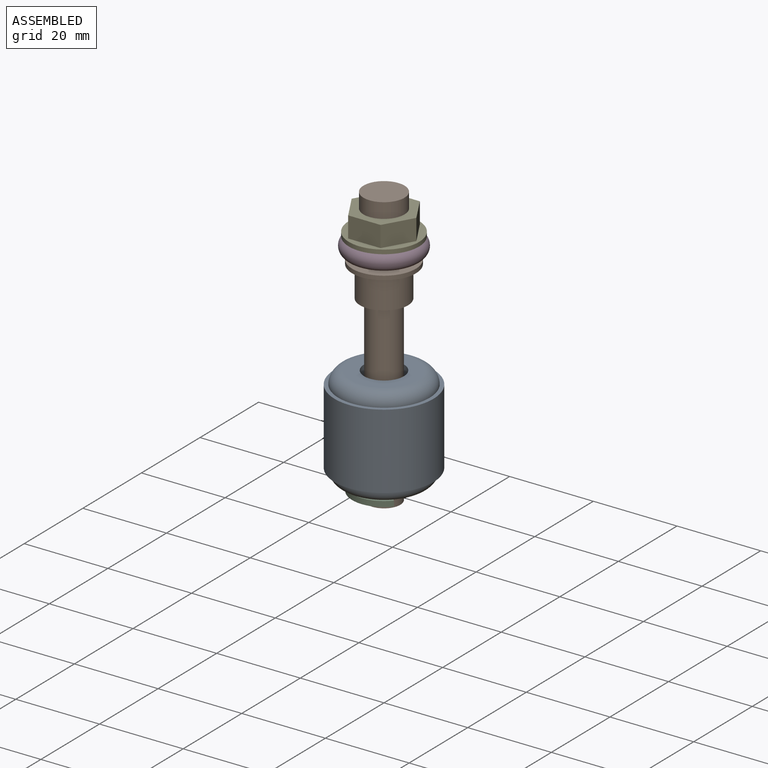
[diagram: assembled view]
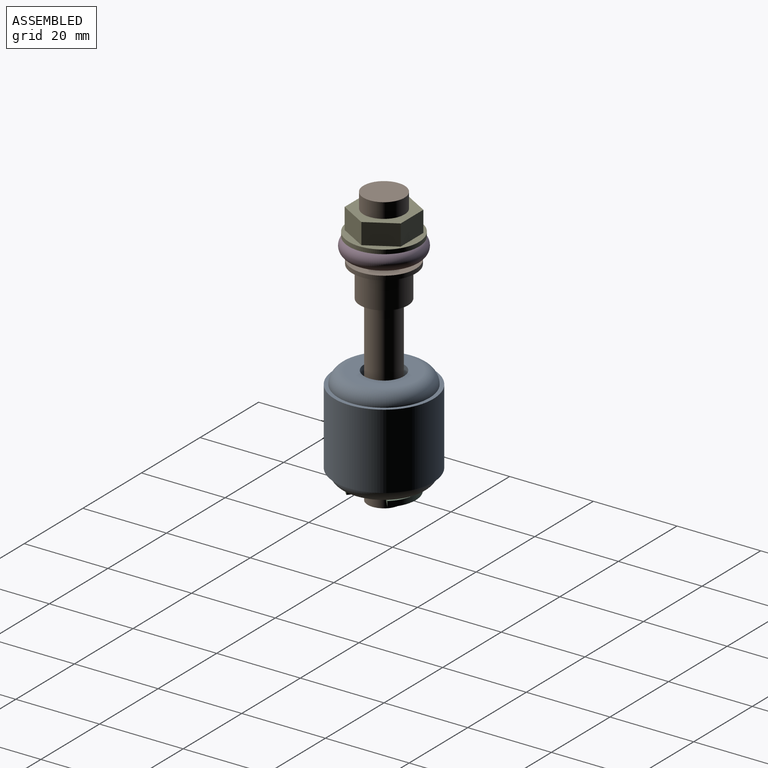
[diagram: assembled view, second angle]
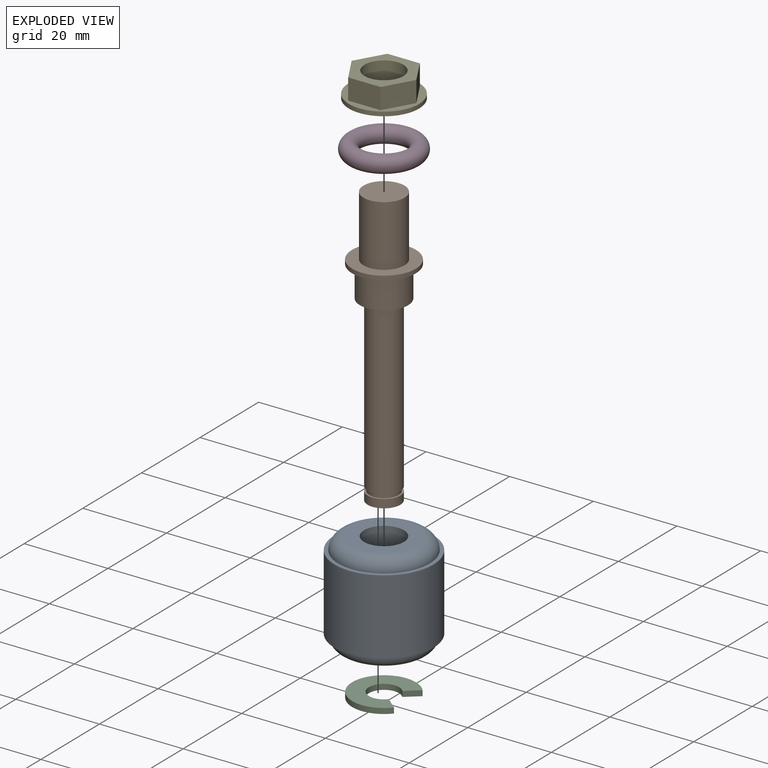
[diagram: exploded view]
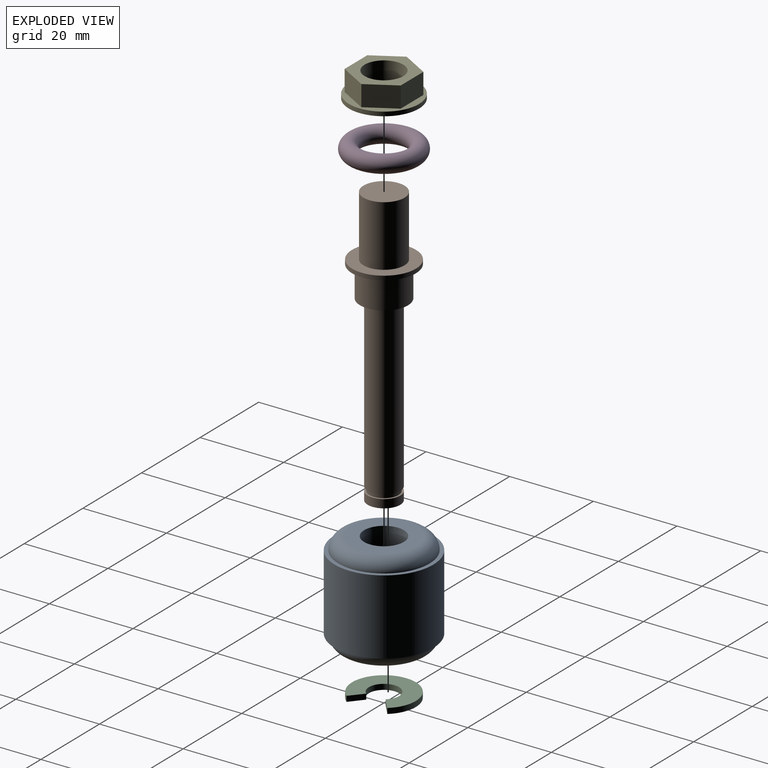
[diagram: exploded view, second angle]
FCSTD DOCUMENT  (FreeCAD 0.22R37100 (Git))
Label: water_sensor
License: All rights reserved
LicenseURL: http://en.wikipedia.org/wiki/All_rights_reserved
objects: PartDesign::CoordinateSystem×9, Sketcher::SketchObject×6, PartDesign::Body×5, App::Link×5, App::Part×5, App::FeaturePython×5, Part::FeaturePython×4, PartDesign::Pad×3, PartDesign::Revolution×2, PartDesign::Mirrored×2, App::AnnotationLabel×2, PartDesign::AdditiveTorus×1, PartDesign::Pocket×1, Assembly::JointGroup×1, Assembly::AssemblyObject×1, App::DocumentObjectGroup×1
note: 40 computed .brp shape members not serialized (recipe doc carries the construction recipe); baked Part::Feature solids carry a one-line shape summary decoded from their .brp

FEATURE [Sketcher::SketchObject] Sketch
  AttachmentSupport = -> [XZ_Plane]
  FullyConstrained = true
  MapMode = 5
  Placement = pos=(0,0,0) rot=(1,0,0;1.5708rad)
  sketch-geometry (6):
    g0: LineSegment StartX=4.75 StartY=0 StartZ=0 EndX=4.75 EndY=12 EndZ=0
    g1: LineSegment StartX=4.75 StartY=12 StartZ=0 EndX=7.9 EndY=12 EndZ=0
    g2: LineSegment StartX=10.9 StartY=9 StartZ=0 EndX=11.8 EndY=9 EndZ=0
    g3: LineSegment StartX=11.8 StartY=9 StartZ=0 EndX=11.8 EndY=0 EndZ=0
    g4: LineSegment StartX=11.8 StartY=0 StartZ=0 EndX=4.75 EndY=0 EndZ=0
    g5: ArcOfCircle CenterX=7.9 CenterY=9 CenterZ=0 NormalX=0 NormalY=0 NormalZ=1 AngleXU=0 Radius=3 StartAngle=1e-16 EndAngle=1.5708
  constraints (17):
    c: PointOnObject(g0,g-1)
    c: Vertical(g0)
    c: Coincident(g0,g1)
    c: Horizontal(g1)
    c: Horizontal(g2)
    c: Coincident(g2,g3)
    c: PointOnObject(g3,g-1)
    c: Vertical(g3)
    c: Coincident(g3,g4)
    c: Coincident(g4,g0)
    c: Tangent(g1,g5) = 1.5708
    c: Perpendicular(g5,g2) = 4.71239
    c: DistanceX(g0) = 4.75
    c: DistanceY(g0) = 12
    c: DistanceY(g3,g3) = 9
    c: DistanceX(g2) = 10.9
    c: DistanceX(g3) = 11.8
FEATURE [PartDesign::Revolution] Revolution
  Angle = 360
  Angle2 = 60
  Axis = (0,2e-16,1)
  Base = (0,0,0)
  Placement = pos=(0,0,0) rot=(1,0,0;1.5708rad)
  Profile = -> Sketch
  ReferenceAxis = -> Sketch [V_Axis]
  Reversed = true
  Suppressed = false
  Type = 0
FEATURE [PartDesign::Mirrored] Mirrored
  BaseFeature = -> Revolution
  MirrorPlane = -> Sketch [H_Axis]
  Originals = -> [Revolution]
  Placement = pos=(0,0,0) rot=(1,0,0;1.5708rad)
  Refine = true
  Suppressed = false
FEATURE [Sketcher::SketchObject] Sketch001
  AttachmentSupport = -> [XZ_Plane001]
  FullyConstrained = true
  MapMode = 5
  Placement = pos=(0,0,0) rot=(1,0,0;1.5708rad)
  sketch-geometry (14):
    g0: LineSegment StartX=0 StartY=0 StartZ=0 EndX=3.9 EndY=0 EndZ=0
    g1: LineSegment StartX=3.9 StartY=0 StartZ=0 EndX=3.9 EndY=2 EndZ=0
    g2: LineSegment StartX=3.9 StartY=2 StartZ=0 EndX=3.475 EndY=2 EndZ=0
    g3: LineSegment StartX=3.475 StartY=2 StartZ=0 EndX=3.475 EndY=3 EndZ=0
    g4: LineSegment StartX=3.475 StartY=3 StartZ=0 EndX=3.9 EndY=3 EndZ=0
    g5: LineSegment StartX=3.9 StartY=3 StartZ=0 EndX=3.9 EndY=43.6 EndZ=0
    g6: LineSegment StartX=3.9 StartY=43.6 StartZ=0 EndX=5.75 EndY=43.6 EndZ=0
    g7: LineSegment StartX=5.75 StartY=43.6 StartZ=0 EndX=5.75 EndY=51 EndZ=0
    g8: LineSegment StartX=5.75 StartY=51 StartZ=0 EndX=7.625 EndY=51 EndZ=0
    g9: LineSegment StartX=7.625 StartY=51 StartZ=0 EndX=7.625 EndY=52 EndZ=0
    g10: LineSegment StartX=7.625 StartY=52 StartZ=0 EndX=4.9 EndY=52 EndZ=0
    g11: LineSegment StartX=4.9 StartY=52 StartZ=0 EndX=4.9 EndY=66.6 EndZ=0
    g12: LineSegment StartX=4.9 StartY=66.6 StartZ=0 EndX=0 EndY=66.6 EndZ=0
    g13: LineSegment StartX=0 StartY=66.6 StartZ=0 EndX=0 EndY=0 EndZ=0
  constraints (41):
    c: Coincident(g-1,g0)
    c: PointOnObject(g0,g-1)
    c: Coincident(g0,g1)
    c: Vertical(g1)
    c: Coincident(g1,g2)
    c: Horizontal(g2)
    c: Coincident(g2,g3)
    c: Vertical(g3)
    c: Coincident(g3,g4)
    c: Horizontal(g4)
    c: Coincident(g4,g5)
    c: Vertical(g5)
    c: Coincident(g5,g6)
    c: Horizontal(g6)
    c: Coincident(g6,g7)
    c: Vertical(g7)
    c: Coincident(g7,g8)
    c: Horizontal(g8)
    c: Coincident(g8,g9)
    c: Vertical(g9)
    c: Coincident(g9,g10)
    c: Coincident(g10,g11)
    c: Vertical(g11)
    c: Coincident(g11,g12)
    c: PointOnObject(g12,g-2)
    c: Horizontal(g12)
    c: Coincident(g13,g12)
    c: Coincident(g13,g0)
    c: DistanceY(g1) = 2
    c: Vertical(g1,g4)
    c: DistanceX(g0) = 3.9
    c: DistanceX(g2) = 3.475
    c: DistanceY(g3,g3) = 1
    c: DistanceY(g5) = 43.6
    c: DistanceX(g6) = 5.75
    c: Horizontal(g10)
    c: DistanceY(g9,g9) = 1
    c: DistanceY(g9) = 52
    c: DistanceX(g8) = 7.625
    c: DistanceX(g10) = 4.9
    c: DistanceY(g12) = 66.6
FEATURE [PartDesign::Revolution] Revolution001
  Angle = 360
  Angle2 = 60
  Axis = (0,2e-16,1)
  Base = (0,0,0)
  Placement = pos=(0,0,0) rot=(1,0,0;1.5708rad)
  Profile = -> Sketch001
  ReferenceAxis = -> Sketch001 [V_Axis]
  Reversed = true
  Suppressed = false
  Type = 0
FEATURE [Sketcher::SketchObject] Sketch002
  AttachmentSupport = -> [XY_Plane002]
  FullyConstrained = true
  MapMode = 5
  sketch-geometry (4):
    g0: ArcOfCircle CenterX=0 CenterY=0 CenterZ=0 NormalX=0 NormalY=0 NormalZ=1 AngleXU=0 Radius=3.6 StartAngle=0.698132 EndAngle=3.14159
    g1: ArcOfCircle CenterX=0 CenterY=0 CenterZ=0 NormalX=0 NormalY=0 NormalZ=1 AngleXU=0 Radius=7.6 StartAngle=0.698132 EndAngle=3.14159
    g2: LineSegment StartX=-7.6 StartY=9e-16 StartZ=0 EndX=-3.6 EndY=4e-16 EndZ=0
    g3: LineSegment StartX=2.75776 StartY=2.31404 StartZ=0 EndX=5.82194 EndY=4.88519 EndZ=0
  constraints (12):
    c: Coincident(g0,g-1)
    c: PointOnObject(g0,g-1)
    c: Coincident(g1,g0)
    c: PointOnObject(g1,g-1)
    c: Coincident(g2,g1)
    c: Coincident(g2,g0)
    c: Coincident(g3,g0)
    c: Coincident(g3,g1)
    c: PointOnObject(g0,g3)
    c: Diameter(g0) = 7.2
    c: Diameter(g1) = 15.2
    c: Angle(g3) = 0.698132
FEATURE [PartDesign::Pad] Pad
  Direction = (0,0,1)
  Length = 1.3
  Length2 = 10
  Profile = -> Sketch002
  ReferenceAxis = -> Sketch002 [N_Axis]
  Suppressed = false
  Type = 0
FEATURE [PartDesign::Mirrored] Mirrored001
  BaseFeature = -> Pad
  MirrorPlane = -> Sketch002 [H_Axis]
  Originals = -> [Pad]
  Suppressed = false
FEATURE [PartDesign::AdditiveTorus] Torus
  Angle1 = -180
  Angle2 = 180
  Angle3 = 360
  AttacherType = Attacher::AttachEngine3D
  Radius1 = 7
  Radius2 = 2
  Suppressed = false
FEATURE [Sketcher::SketchObject] Sketch003
  AttachmentSupport = -> [XY_Plane004]
  FullyConstrained = true
  MapMode = 5
  sketch-geometry (7):
    g0: LineSegment StartX=7.73649 StartY=0 StartZ=0 EndX=3.86825 EndY=6.7 EndZ=0
    g1: LineSegment StartX=3.86825 StartY=6.7 StartZ=0 EndX=-3.86825 EndY=6.7 EndZ=0
    g2: LineSegment StartX=-3.86825 StartY=6.7 StartZ=0 EndX=-7.73649 EndY=-1.13589e-11 EndZ=0
    g3: LineSegment StartX=-7.73649 StartY=-1.13592e-11 StartZ=0 EndX=-3.86825 EndY=-6.7 EndZ=0
    g4: LineSegment StartX=-3.86825 StartY=-6.7 StartZ=0 EndX=3.86825 EndY=-6.7 EndZ=0
    g5: LineSegment StartX=3.86825 StartY=-6.7 StartZ=0 EndX=7.73649 EndY=0 EndZ=0
    g6: Circle CenterX=0 CenterY=0 CenterZ=0 NormalX=0 NormalY=0 NormalZ=1 AngleXU=0 Radius=7.73649
  constraints (16):
    c: Coincident(g0,g1)
    c: Coincident(g1,g2)
    c: Coincident(g2,g3)
    c: Coincident(g3,g4)
    c: Coincident(g4,g5)
    c: Coincident(g5,g0)
    c: Equal(g0, g1-g5) x5
    c: PointOnObject(g0,g6)
    c: PointOnObject(g1,g6)
    c: PointOnObject(g2,g6)
    c: PointOnObject(g3,g6)
    c: PointOnObject(g4,g6)
    c: PointOnObject(g5,g6)
    c: Coincident(g6,g-1)
    c: PointOnObject(g5,g-1)
    c: DistanceY(g4,g0) = 13.4
FEATURE [Sketcher::SketchObject] Sketch004
  AttachmentSupport = -> [XY_Plane004]
  FullyConstrained = true
  MapMode = 5
  sketch-geometry (1):
    g0: Circle CenterX=0 CenterY=0 CenterZ=0 NormalX=0 NormalY=0 NormalZ=1 AngleXU=0 Radius=8.4
  constraints (2):
    c: Coincident(g0,g-1)
    c: Diameter(g0) = 16.8
FEATURE [PartDesign::Pad] Pad001
  Direction = (0,0,1)
  Length = 6
  Length2 = 10
  Profile = -> Sketch003
  ReferenceAxis = -> Sketch003 [N_Axis]
  Suppressed = false
  Type = 0
FEATURE [PartDesign::Pad] Pad002
  BaseFeature = -> Pad001
  Direction = (0,0,1)
  Length = 1
  Length2 = 10
  Profile = -> Sketch004
  ReferenceAxis = -> Sketch004 [N_Axis]
  Suppressed = false
  Type = 0
FEATURE [Sketcher::SketchObject] Sketch005
  AttachmentSupport = -> [XY_Plane004]
  FullyConstrained = true
  MapMode = 5
  sketch-geometry (1):
    g0: Circle CenterX=0 CenterY=0 CenterZ=0 NormalX=0 NormalY=0 NormalZ=1 AngleXU=0 Radius=4.625
  constraints (2):
    c: Coincident(g0,g-1)
    c: Diameter(g0) = 9.25
FEATURE [PartDesign::Pocket] Pocket
  BaseFeature = -> Pad002
  Direction = (0,0,-1)
  Length = 5
  Length2 = 5
  Midplane = true
  Profile = -> Sketch005
  ReferenceAxis = -> Sketch005 [N_Axis]
  Suppressed = false
  Type = 1
FEATURE [PartDesign::CoordinateSystem] Local_CS
  AttacherType = Attacher::AttachEngine3D
  AttachmentSupport = -> [XY_Plane]
  MapMode = 5
FEATURE [PartDesign::Body] Body
  Group = -> [Sketch,Revolution,Mirrored,Local_CS]
  Origin = -> Origin
  Tip = -> Mirrored
FEATURE [PartDesign::CoordinateSystem] Local_CS001
  AttacherType = Attacher::AttachEngine3D
  AttachmentOffset = pos=(0,0,2) rot=(0,0,1;0rad)
  AttachmentSupport = -> [XY_Plane001]
  MapMode = 5
  Placement = pos=(0,0,2) rot=(0,0,1;0rad)
FEATURE [PartDesign::CoordinateSystem] Local_CS002
  AttacherType = Attacher::AttachEngine3D
  AttachmentOffset = pos=(0,0,16) rot=(0,0,1;0rad)
  AttachmentSupport = -> [XY_Plane001]
  MapMode = 5
  Placement = pos=(0,0,16) rot=(0,0,1;0rad)
FEATURE [PartDesign::CoordinateSystem] Local_CS003
  AttacherType = Attacher::AttachEngine3D
  AttachmentOffset = pos=(0,0,55) rot=(0,0,1;0rad)
  AttachmentSupport = -> [XY_Plane001]
  MapMode = 5
  Placement = pos=(0,0,55) rot=(0,0,1;0rad)
FEATURE [PartDesign::CoordinateSystem] Local_CS004
  AttacherType = Attacher::AttachEngine3D
  AttachmentOffset = pos=(0,0,57) rot=(0,0,1;0rad)
  AttachmentSupport = -> [XY_Plane001]
  MapMode = 5
  Placement = pos=(0,0,57) rot=(0,0,1;0rad)
FEATURE [PartDesign::Body] Body001
  Group = -> [Sketch001,Revolution001,Local_CS001,Local_CS002,Local_CS003,Local_CS004]
  Origin = -> Origin001
  Tip = -> Revolution001
FEATURE [PartDesign::CoordinateSystem] Local_CS005
  AttacherType = Attacher::AttachEngine3D
  AttachmentSupport = -> [XY_Plane002]
  MapMode = 5
FEATURE [PartDesign::Body] Body002
  Group = -> [Sketch002,Pad,Mirrored001,Local_CS005]
  Origin = -> Origin002
  Tip = -> Mirrored001
FEATURE [PartDesign::CoordinateSystem] Local_CS006
  AttacherType = Attacher::AttachEngine3D
  AttachmentSupport = -> [XY_Plane003]
  MapMode = 5
FEATURE [PartDesign::Body] Body003
  Group = -> [Torus,Local_CS006]
  Origin = -> Origin003
  Tip = -> Torus
FEATURE [PartDesign::CoordinateSystem] Local_CS007
  AttacherType = Attacher::AttachEngine3D
  AttachmentSupport = -> [XY_Plane004]
  MapMode = 5
FEATURE [PartDesign::Body] Body004
  Group = -> [Sketch003,Sketch004,Pad001,Pad002,Sketch005,Pocket,Local_CS007]
  Origin = -> Origin004
  Tip = -> Pocket
FEATURE [App::Link] Body005
  LinkedObject = -> Body001
FEATURE [App::Part] Part_Body001  label="Part_Body001 🔒 "
  Group = -> [Body005]
  Origin = -> Origin006
  Placement = pos=(0,0,-52) rot=(0,0,1;0rad)
FEATURE [App::Link] Body006
  LinkedObject = -> Body
FEATURE [App::Part] Part_Body
  Group = -> [Body006]
  Origin = -> Origin007
  Placement = pos=(0,0,-36) rot=(0,0,1;0rad)
FEATURE [App::Link] Body007
  LinkedObject = -> Body002
FEATURE [App::Part] Part_Body002
  Group = -> [Body007]
  Origin = -> Origin008
  Placement = pos=(0,0,-50) rot=(0,0,1;0rad)
FEATURE [App::Link] Body008
  LinkedObject = -> Body003
FEATURE [App::Part] Part_Body003
  Group = -> [Body008]
  Origin = -> Origin009
  Placement = pos=(0,0,3) rot=(0,0,1;0rad)
FEATURE [App::Link] Body009
  LinkedObject = -> Body004
FEATURE [App::Part] Part_Body004
  Group = -> [Body009]
  Origin = -> Origin010
  Placement = pos=(0,0,5) rot=(0,0,1;0rad)
FEATURE [App::FeaturePython] Fixed  # Assembly joint (typed FeaturePython)
  Activated = true
  Detach1 = false
  Detach2 = false
  Distance = 0
  JointType = 0 (Fixed)
  Object1 = Local_CS001
  Object2 = Local_CS005
  Offset = (0,0,0)
  Part1 = -> Part_Body001
  Part2 = -> Part_Body002
  Rotation = 0
FEATURE [App::FeaturePython] Fixed001  # Assembly joint (typed FeaturePython)
  Activated = true
  Detach1 = false
  Detach2 = false
  Distance = 0
  JointType = 0 (Fixed)
  Object1 = Local_CS003
  Object2 = Local_CS006
  Offset = (0,0,0)
  Part1 = -> Part_Body001
  Part2 = -> Part_Body003
  Rotation = 0
FEATURE [App::FeaturePython] Fixed002  # Assembly joint (typed FeaturePython)
  Activated = true
  Detach1 = false
  Detach2 = false
  Distance = 0
  JointType = 0 (Fixed)
  Object1 = Local_CS004
  Object2 = Local_CS007
  Offset = (0,0,0)
  Part1 = -> Part_Body001
  Part2 = -> Part_Body004
  Rotation = 0
FEATURE [App::FeaturePython] GroundedJoint  # Assembly grounded joint (typed FeaturePython)
  ObjectToGround = -> Part_Body001
  Placement = pos=(0,0,-52) rot=(0,0,1;0rad)
FEATURE [App::FeaturePython] Fixed003  # Assembly joint (typed FeaturePython)
  Activated = true
  Detach1 = false
  Detach2 = false
  Distance = 0
  JointType = 0 (Fixed)
  Object1 = Local_CS002
  Object2 = Local_CS
  Offset = (0,0,0)
  Part1 = -> Part_Body001
  Part2 = -> Part_Body
  Rotation = 0
FEATURE [Assembly::JointGroup] Joints
  Group = -> [Fixed,Fixed001,Fixed002,GroundedJoint,Fixed003]
FEATURE [PartDesign::CoordinateSystem] Local_CS008
  AttacherType = Attacher::AttachEngine3D
  AttachmentSupport = -> [XY_Plane005]
  MapMode = 5
FEATURE [Assembly::AssemblyObject] Assembly
  Group = -> [Joints,Part_Body001,Part_Body,Part_Body002,Part_Body003,Part_Body004,Fixed,Fixed001,Fixed002,GroundedJoint,Fixed003,Local_CS008]
  Origin = -> Origin005
  Type = Assembly
FEATURE [Part::FeaturePython] aCircle  # WARN: FeaturePython — macro-defined, semantics opaque (R4)
FEATURE [Part::FeaturePython] Radius  # WARN: FeaturePython — macro-defined, semantics opaque (R4)
FEATURE [App::AnnotationLabel] MeasureLbl
  BasePosition = (4.9,1.48e-14,14.6)
  LabelText = R = 4,9000 mm
  TextPosition = (0,0,0)
FEATURE [Part::FeaturePython] aCircle001  # WARN: FeaturePython — macro-defined, semantics opaque (R4)
FEATURE [Part::FeaturePython] Radius001  # WARN: FeaturePython — macro-defined, semantics opaque (R4)
FEATURE [App::AnnotationLabel] MeasureLbl001
  BasePosition = (8.4,0,6)
  LabelText = R = 8,4000 mm
  TextPosition = (0,0,0)
FEATURE [App::DocumentObjectGroup] Measures
  Group = -> [aCircle,Radius,MeasureLbl,aCircle001,Radius001,MeasureLbl001]
